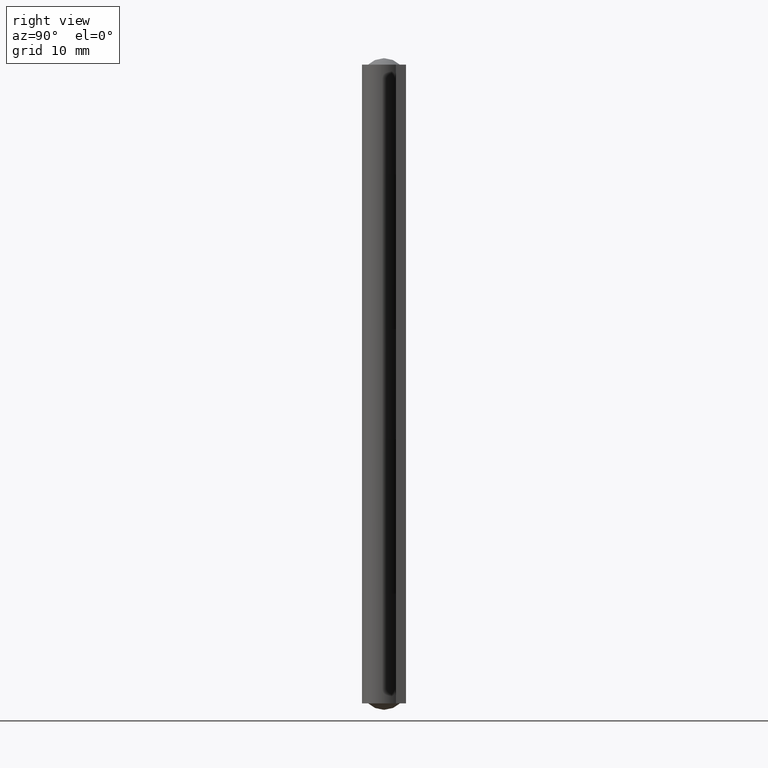
[diagram: clean part render]
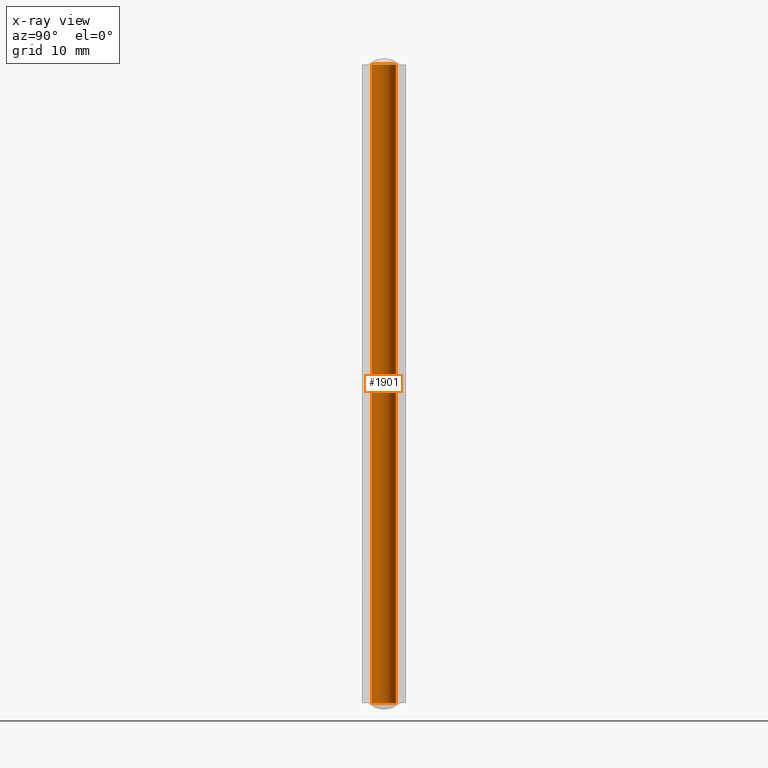
[diagram: x-ray — body ghosted, one internal face saturated and labeled with its STEP entity id]
A machine part, right view, then the same camera in x-ray: the body is ghosted and one INTERNAL B-rep face — a face not visible from any outside direction — is saturated and labeled: STEP entity #1901.
In plain terms, the highlighted face is a freeform B-spline surface patch.
Its self-contained STEP definition (entity closure, byte-faithful):
#1768=CARTESIAN_POINT('',(1.199997000000000,0.0,0.0));
#1769=VERTEX_POINT('',#1768);
#1770=CARTESIAN_POINT('',(0.073258064456880,-1.197758763692018,-3.330669E-015));
#1771=VERTEX_POINT('',#1770);
#1772=CARTESIAN_POINT('',(1.199997000000000,0.0,0.0));
#1773=CARTESIAN_POINT('',(1.199997000000000,-1.128844458016925,0.0));
#1774=CARTESIAN_POINT('',(0.073258064456880,-1.197758763692018,0.0));
#1782=(BOUNDED_CURVE()B_SPLINE_CURVE(2,(#1772,#1773,#1774),.UNSPECIFIED.,.F.,.U.)B_SPLINE_CURVE_WITH_KNOTS((3,3),(0.500000000000000,0.739332962218823),.UNSPECIFIED.)CURVE()GEOMETRIC_REPRESENTATION_ITEM()RATIONAL_B_SPLINE_CURVE((1.0,0.719603993310283,0.976072041623596))REPRESENTATION_ITEM(''));
#1783=EDGE_CURVE('',#1769,#1771,#1782,.T.);
#1802=CARTESIAN_POINT('',(-0.073258064456880,1.197758763692018,-3.330669E-015));
#1803=VERTEX_POINT('',#1802);
#1817=CARTESIAN_POINT('',(-0.073258064456880,1.197758763692018,-3.330669E-015));
#1818=CARTESIAN_POINT('',(-0.036663224380577,1.199997000000000,0.0));
#1819=CARTESIAN_POINT('',(0.0,1.199997000000000,0.0));
#1820=CARTESIAN_POINT('',(1.199997000000000,1.199997000000000,0.0));
#1821=CARTESIAN_POINT('',(1.199997000000000,0.0,0.0));
#1829=(BOUNDED_CURVE()B_SPLINE_CURVE(2,(#1817,#1818,#1819,#1820,#1821),.UNSPECIFIED.,.F.,.U.)B_SPLINE_CURVE_WITH_KNOTS((3,2,3),(0.239332962218823,0.250000000000000,0.500000000000000),.UNSPECIFIED.)CURVE()GEOMETRIC_REPRESENTATION_ITEM()RATIONAL_B_SPLINE_CURVE((0.976072041623596,0.987502787876265,1.0,0.707106781186548,1.0))REPRESENTATION_ITEM(''));
#1830=EDGE_CURVE('',#1803,#1769,#1829,.T.);
#1835=CARTESIAN_POINT('',(-0.073258064296210,1.197758763701845,65.599999999999994));
#1836=CARTESIAN_POINT('',(1.124500699405635,1.271016827998055,65.599999999999994));
#1837=CARTESIAN_POINT('',(1.197758763701845,0.073258064296210,65.599999999999994));
#1838=CARTESIAN_POINT('',(1.271016827998055,-1.124500699405635,65.599999999999994));
#1839=CARTESIAN_POINT('',(0.073258064296210,-1.197758763701845,65.599999999999994));
#1840=CARTESIAN_POINT('',(-0.073258064296210,1.197758763701845,-1.640000000000001));
#1841=CARTESIAN_POINT('',(1.124500699405635,1.271016827998055,-1.640000000000001));
#1842=CARTESIAN_POINT('',(1.197758763701845,0.073258064296210,-1.640000000000001));
#1843=CARTESIAN_POINT('',(1.271016827998055,-1.124500699405635,-1.640000000000001));
#1844=CARTESIAN_POINT('',(0.073258064296210,-1.197758763701845,-1.640000000000001));
#1852=(BOUNDED_SURFACE()B_SPLINE_SURFACE(2,1,((#1835,#1840),(#1836,#1841),(#1837,#1842),(#1838,#1843),(#1839,#1844)),.UNSPECIFIED.,.F.,.F.,.U.)B_SPLINE_SURFACE_WITH_KNOTS((3,2,3),(2,2),(3.141592653589793,4.712388980384690,6.283185307179586),(0.0,67.239999999999995),.UNSPECIFIED.)GEOMETRIC_REPRESENTATION_ITEM()RATIONAL_B_SPLINE_SURFACE(((1.0,1.0),(0.707106781186548,0.707106781186548),(1.0,1.0),(0.707106781186548,0.707106781186548),(1.0,1.0)))REPRESENTATION_ITEM('')SURFACE());
#1853=ORIENTED_EDGE('',*,*,#1830,.F.);
#1854=CARTESIAN_POINT('',(-0.073258064456880,1.197758763692018,64.0));
#1855=VERTEX_POINT('',#1854);
#1856=CARTESIAN_POINT('',(-0.073258064456880,1.197758763692018,64.0));
#1857=CARTESIAN_POINT('',(-0.073258064456880,1.197758763692018,-3.330669E-015));
#1858=QUASI_UNIFORM_CURVE('',1,(#1856,#1857),.UNSPECIFIED.,.F.,.U.);
#1859=EDGE_CURVE('',#1855,#1803,#1858,.T.);
#1860=ORIENTED_EDGE('',*,*,#1859,.F.);
#1861=CARTESIAN_POINT('',(1.199997000000000,0.0,64.0));
#1862=VERTEX_POINT('',#1861);
#1863=CARTESIAN_POINT('',(-0.073258064456880,1.197758763692018,64.0));
#1864=CARTESIAN_POINT('',(-0.036663224380577,1.199997000000000,64.000000000000014));
#1865=CARTESIAN_POINT('',(0.0,1.199997000000000,64.0));
#1866=CARTESIAN_POINT('',(1.199997000000000,1.199997000000000,64.000000000000014));
#1867=CARTESIAN_POINT('',(1.199997000000000,0.0,64.0));
#1875=(BOUNDED_CURVE()B_SPLINE_CURVE(2,(#1863,#1864,#1865,#1866,#1867),.UNSPECIFIED.,.F.,.U.)B_SPLINE_CURVE_WITH_KNOTS((3,2,3),(0.239332962218823,0.250000000000000,0.500000000000000),.UNSPECIFIED.)CURVE()GEOMETRIC_REPRESENTATION_ITEM()RATIONAL_B_SPLINE_CURVE((0.976072041623596,0.987502787876265,1.0,0.707106781186548,1.0))REPRESENTATION_ITEM(''));
#1876=EDGE_CURVE('',#1855,#1862,#1875,.T.);
#1877=ORIENTED_EDGE('',*,*,#1876,.T.);
#1878=CARTESIAN_POINT('',(0.073258064456880,-1.197758763692018,64.0));
#1879=VERTEX_POINT('',#1878);
#1880=CARTESIAN_POINT('',(1.199997000000000,0.0,64.0));
#1881=CARTESIAN_POINT('',(1.199997000000000,-1.128844458016925,64.0));
#1882=CARTESIAN_POINT('',(0.073258064456880,-1.197758763692018,64.0));
#1890=(BOUNDED_CURVE()B_SPLINE_CURVE(2,(#1880,#1881,#1882),.UNSPECIFIED.,.F.,.U.)B_SPLINE_CURVE_WITH_KNOTS((3,3),(0.500000000000000,0.739332962218823),.UNSPECIFIED.)CURVE()GEOMETRIC_REPRESENTATION_ITEM()RATIONAL_B_SPLINE_CURVE((1.0,0.719603993310283,0.976072041623596))REPRESENTATION_ITEM(''));
#1891=EDGE_CURVE('',#1862,#1879,#1890,.T.);
#1892=ORIENTED_EDGE('',*,*,#1891,.T.);
#1893=CARTESIAN_POINT('',(0.073258064456880,-1.197758763692018,64.0));
#1894=CARTESIAN_POINT('',(0.073258064456880,-1.197758763692018,-3.330669E-015));
#1895=QUASI_UNIFORM_CURVE('',1,(#1893,#1894),.UNSPECIFIED.,.F.,.U.);
#1896=EDGE_CURVE('',#1879,#1771,#1895,.T.);
#1897=ORIENTED_EDGE('',*,*,#1896,.T.);
#1898=ORIENTED_EDGE('',*,*,#1783,.F.);
#1899=EDGE_LOOP('',(#1853,#1860,#1877,#1892,#1897,#1898));
#1900=FACE_OUTER_BOUND('',#1899,.T.);
#1901=ADVANCED_FACE('',(#1900),#1852,.T.);